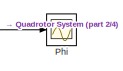
[diagram: root canvas - part 1/4, top right region]
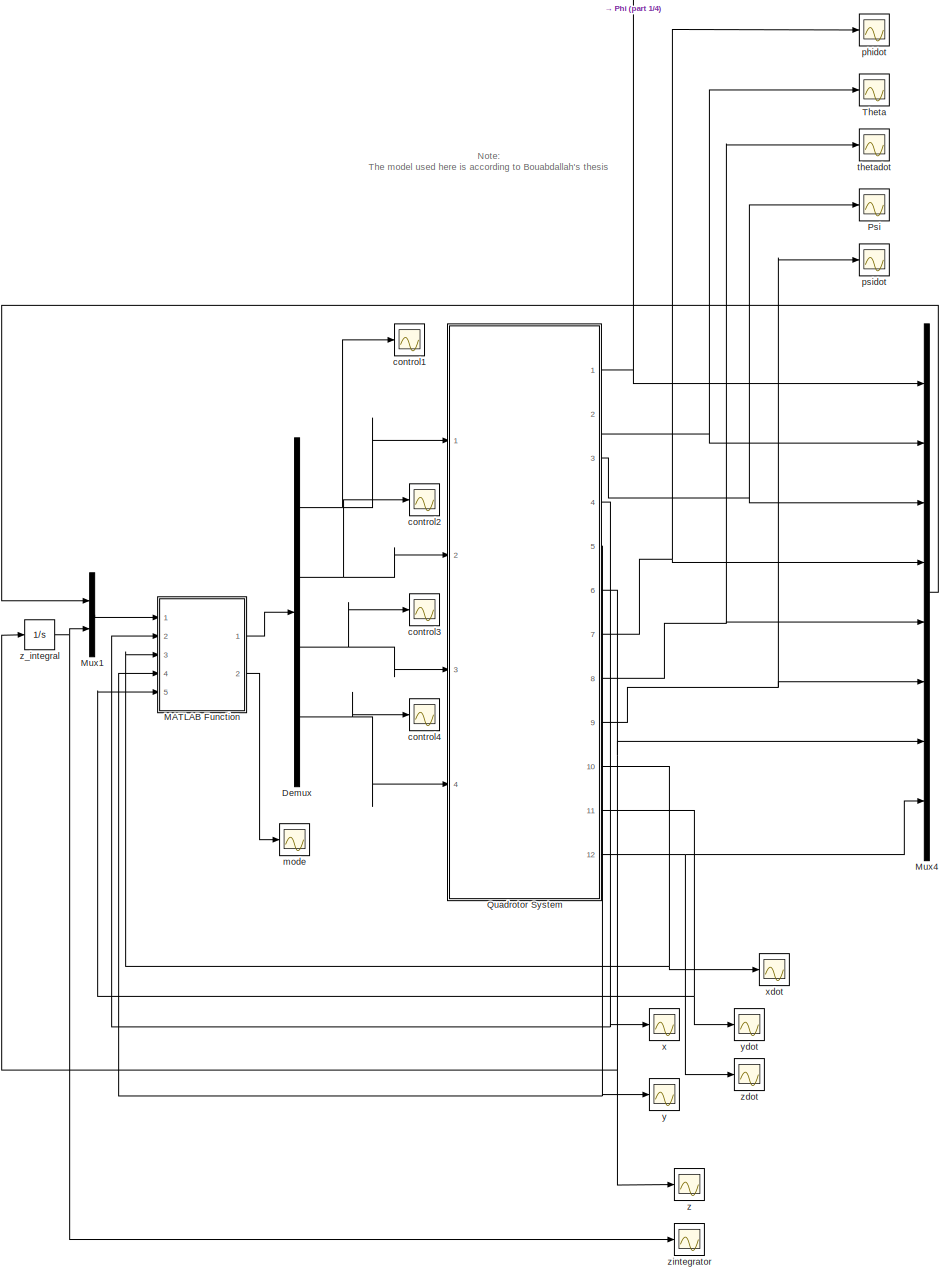
[diagram: root canvas - part 2/4, center side, full height]
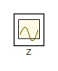
[diagram: root canvas - part 3/4, top right region]
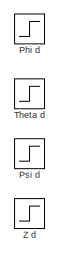
[diagram: root canvas - part 4/4, middle left region]
MODEL slx_b5c7e4dc78c3
KIND model
BLOCK [Demux] Demux
  DisplayOption = bar
  Ports = [1, 4]
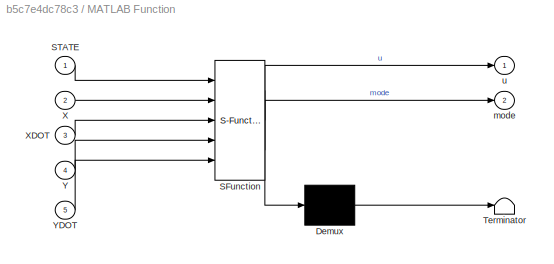
BLOCK [SubSystem] MATLAB Function
  ErrorFcn = Stateflow.Translate.translate
  FunctionWithSeparateData = off
  MaskHideContents = off
  MinAlgLoopOccurrences = off
  Opaque = off
  PermitHierarchicalResolution = ExplicitOnly
  Ports = [5, 2]
  PropExecContextOutsideSubsystem = off
  RTWSystemCode = Auto
  RequestExecContextInheritance = off
  SFBlockType = MATLAB Function
  TreatAsAtomicUnit = on
BLOCK [Demux] MATLAB Function/ Demux 
  Outputs = 1
  Ports = [1, 1]
BLOCK [S-Function] MATLAB Function/ SFunction 
  EnableBusSupport = on
  FunctionName = sf_sfun
  Parameters = K0
  PortCounts = [5 3]
  Ports = [5, 3]
  Tag = Stateflow S-Function PDQuadrotor_integrator 2
BLOCK [Terminator] MATLAB Function/ Terminator 
BLOCK [Inport] MATLAB Function/STATE
  IconDisplay = Port number
BLOCK [Inport] MATLAB Function/X
  IconDisplay = Port number
  Port = 2
BLOCK [Inport] MATLAB Function/XDOT
  IconDisplay = Port number
  Port = 3
BLOCK [Inport] MATLAB Function/Y
  IconDisplay = Port number
  Port = 4
BLOCK [Inport] MATLAB Function/YDOT
  IconDisplay = Port number
  Port = 5
BLOCK [Outport] MATLAB Function/mode
  IconDisplay = Port number
  Port = 2
BLOCK [Outport] MATLAB Function/u
  IconDisplay = Port number
BLOCK [Mux] Mux1
  DisplayOption = bar
  Inputs = 2
  Ports = [2, 1]
BLOCK [Mux] Mux4
  DisplayOption = bar
  Inputs = 8
  Ports = [8, 1]
BLOCK [Scope] Phi
  DataFormat = StructureWithTime
  Floating = off
  LimitDataPoints = off
  NumInputPorts = 1
  Ports = [1]
  SampleTime = 0
  ShowLegends = off
BLOCK [Step] Phi d
  SampleTime = 0
BLOCK [Scope] Psi
  DataFormat = StructureWithTime
  Floating = off
  LimitDataPoints = off
  NumInputPorts = 1
  Ports = [1]
  SampleTime = 0
  SaveName = ScopeData2
  ShowLegends = off
BLOCK [Step] Psi d
  SampleTime = 0
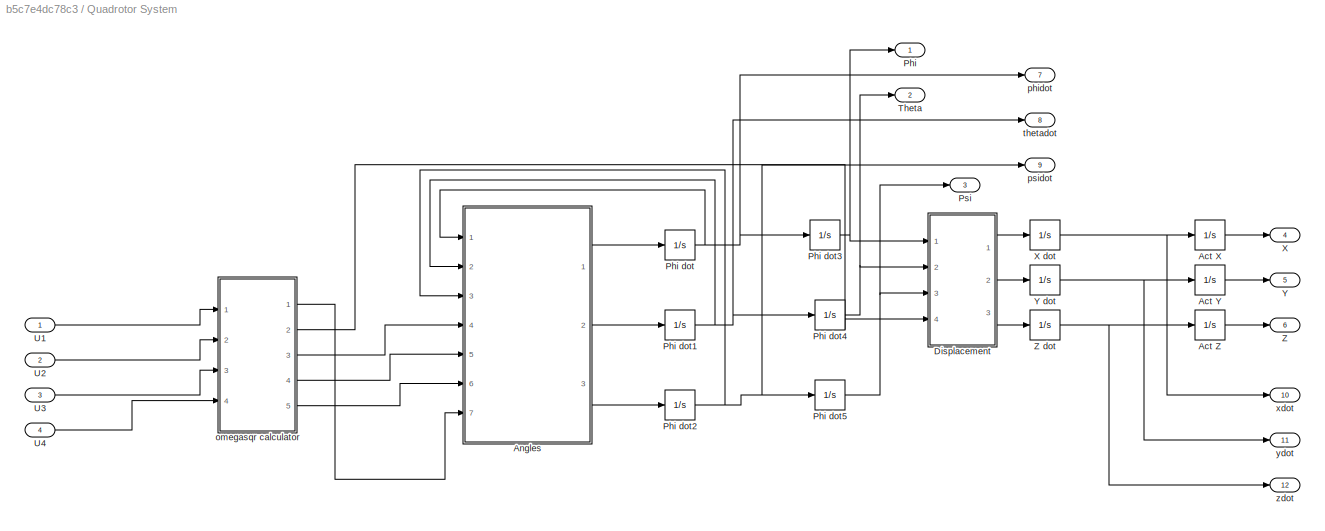
BLOCK [SubSystem] Quadrotor System
  FunctionWithSeparateData = off
  MaskHideContents = off
  MinAlgLoopOccurrences = off
  Opaque = off
  Ports = [4, 12]
  PropExecContextOutsideSubsystem = off
  RTWSystemCode = Auto
  RequestExecContextInheritance = off
BLOCK [Integrator] Quadrotor System/Act X
  Ports = [1, 1]
BLOCK [Integrator] Quadrotor System/Act Y
  Ports = [1, 1]
BLOCK [Integrator] Quadrotor System/Act Z
  Ports = [1, 1]
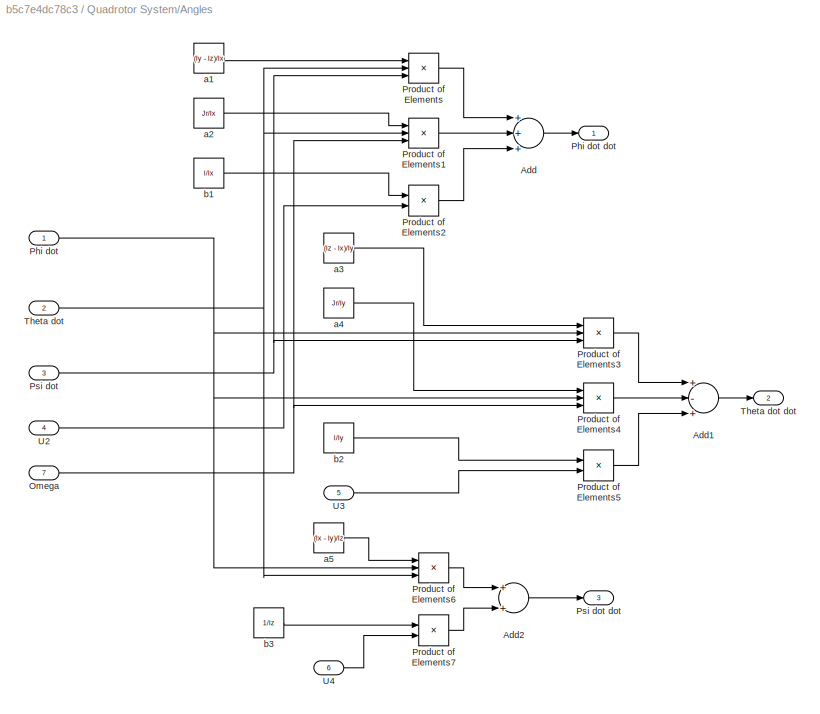
BLOCK [SubSystem] Quadrotor System/Angles
  FunctionWithSeparateData = off
  MaskHideContents = off
  MinAlgLoopOccurrences = off
  Opaque = off
  Ports = [7, 3]
  PropExecContextOutsideSubsystem = off
  RTWSystemCode = Auto
  RequestExecContextInheritance = off
BLOCK [Sum] Quadrotor System/Angles/Add
  InputSameDT = off
  Inputs = +++
  OutDataTypeStr = Inherit: Inherit via internal rule
  Ports = [3, 1]
  SaturateOnIntegerOverflow = off
BLOCK [Sum] Quadrotor System/Angles/Add1
  InputSameDT = off
  Inputs = +-+
  OutDataTypeStr = Inherit: Inherit via internal rule
  Ports = [3, 1]
  SaturateOnIntegerOverflow = off
BLOCK [Sum] Quadrotor System/Angles/Add2
  InputSameDT = off
  OutDataTypeStr = Inherit: Inherit via internal rule
  Ports = [2, 1]
  SaturateOnIntegerOverflow = off
BLOCK [Inport] Quadrotor System/Angles/Omega
  IconDisplay = Port number
  Port = 7
BLOCK [Inport] Quadrotor System/Angles/Phi dot
  IconDisplay = Port number
BLOCK [Outport] Quadrotor System/Angles/Phi dot dot
  IconDisplay = Port number
BLOCK [Product] Quadrotor System/Angles/Product of Elements
  InputSameDT = off
  Inputs = 3
  OutDataTypeStr = Inherit: Inherit via internal rule
  Ports = [3, 1]
  RndMeth = Floor
  SaturateOnIntegerOverflow = off
BLOCK [Product] Quadrotor System/Angles/Product of Elements1
  InputSameDT = off
  Inputs = 3
  OutDataTypeStr = Inherit: Inherit via internal rule
  Ports = [3, 1]
  RndMeth = Floor
  SaturateOnIntegerOverflow = off
BLOCK [Product] Quadrotor System/Angles/Product of Elements2
  InputSameDT = off
  OutDataTypeStr = Inherit: Inherit via internal rule
  Ports = [2, 1]
  RndMeth = Floor
  SaturateOnIntegerOverflow = off
BLOCK [Product] Quadrotor System/Angles/Product of Elements3
  InputSameDT = off
  Inputs = 3
  OutDataTypeStr = Inherit: Inherit via internal rule
  Ports = [3, 1]
  RndMeth = Floor
  SaturateOnIntegerOverflow = off
BLOCK [Product] Quadrotor System/Angles/Product of Elements4
  InputSameDT = off
  Inputs = 3
  OutDataTypeStr = Inherit: Inherit via internal rule
  Ports = [3, 1]
  RndMeth = Floor
  SaturateOnIntegerOverflow = off
BLOCK [Product] Quadrotor System/Angles/Product of Elements5
  InputSameDT = off
  OutDataTypeStr = Inherit: Inherit via internal rule
  Ports = [2, 1]
  RndMeth = Floor
  SaturateOnIntegerOverflow = off
BLOCK [Product] Quadrotor System/Angles/Product of Elements6
  InputSameDT = off
  Inputs = 3
  OutDataTypeStr = Inherit: Inherit via internal rule
  Ports = [3, 1]
  RndMeth = Floor
  SaturateOnIntegerOverflow = off
BLOCK [Product] Quadrotor System/Angles/Product of Elements7
  InputSameDT = off
  OutDataTypeStr = Inherit: Inherit via internal rule
  Ports = [2, 1]
  RndMeth = Floor
  SaturateOnIntegerOverflow = off
BLOCK [Inport] Quadrotor System/Angles/Psi dot
  IconDisplay = Port number
  Port = 3
BLOCK [Outport] Quadrotor System/Angles/Psi dot dot
  IconDisplay = Port number
  Port = 3
BLOCK [Inport] Quadrotor System/Angles/Theta dot
  IconDisplay = Port number
  Port = 2
BLOCK [Outport] Quadrotor System/Angles/Theta dot dot
  IconDisplay = Port number
  Port = 2
BLOCK [Inport] Quadrotor System/Angles/U2
  IconDisplay = Port number
  Port = 4
BLOCK [Inport] Quadrotor System/Angles/U3
  IconDisplay = Port number
  Port = 5
BLOCK [Inport] Quadrotor System/Angles/U4
  IconDisplay = Port number
  Port = 6
BLOCK [Constant] Quadrotor System/Angles/a1
  Value = (Iy - Iz)/Ix
BLOCK [Constant] Quadrotor System/Angles/a2
  Value = Jr/Ix
BLOCK [Constant] Quadrotor System/Angles/a3
  Value = (Iz - Ix)/Iy
BLOCK [Constant] Quadrotor System/Angles/a4
  Value = Jr/Iy
BLOCK [Constant] Quadrotor System/Angles/a5
  Value = (Ix - Iy)/Iz
BLOCK [Constant] Quadrotor System/Angles/b1
  Value = l/Ix
BLOCK [Constant] Quadrotor System/Angles/b2
  Value = l/Iy
BLOCK [Constant] Quadrotor System/Angles/b3
  Value = 1/Iz
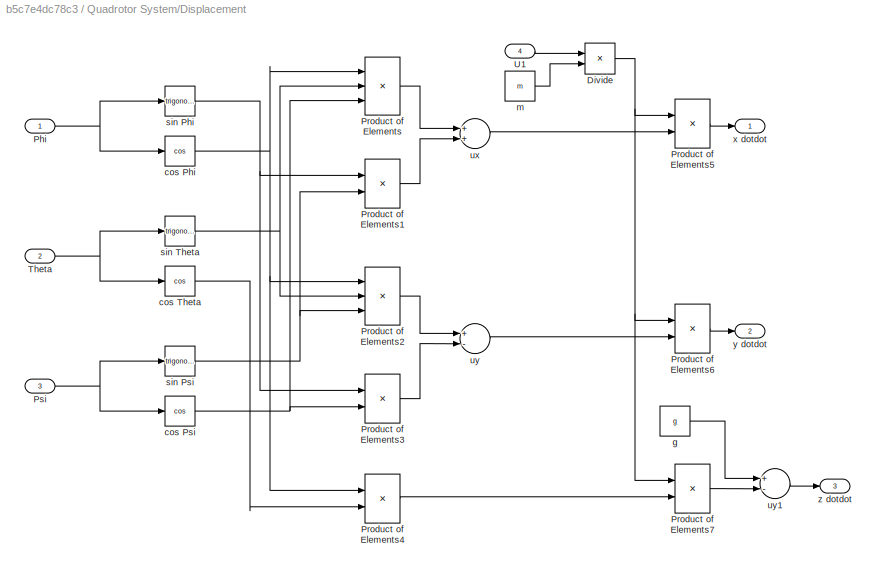
BLOCK [SubSystem] Quadrotor System/Displacement
  FunctionWithSeparateData = off
  MaskHideContents = off
  MinAlgLoopOccurrences = off
  Opaque = off
  Ports = [4, 3]
  PropExecContextOutsideSubsystem = off
  RTWSystemCode = Auto
  RequestExecContextInheritance = off
BLOCK [Product] Quadrotor System/Displacement/Divide
  InputSameDT = off
  Inputs = */
  OutDataTypeStr = Inherit: Inherit via internal rule
  Ports = [2, 1]
  RndMeth = Floor
  SaturateOnIntegerOverflow = off
BLOCK [Inport] Quadrotor System/Displacement/Phi
  IconDisplay = Port number
BLOCK [Product] Quadrotor System/Displacement/Product of Elements
  InputSameDT = off
  Inputs = 3
  OutDataTypeStr = Inherit: Inherit via internal rule
  Ports = [3, 1]
  RndMeth = Floor
  SaturateOnIntegerOverflow = off
BLOCK [Product] Quadrotor System/Displacement/Product of Elements1
  InputSameDT = off
  OutDataTypeStr = Inherit: Inherit via internal rule
  Ports = [2, 1]
  RndMeth = Floor
  SaturateOnIntegerOverflow = off
BLOCK [Product] Quadrotor System/Displacement/Product of Elements2
  InputSameDT = off
  Inputs = 3
  OutDataTypeStr = Inherit: Inherit via internal rule
  Ports = [3, 1]
  RndMeth = Floor
  SaturateOnIntegerOverflow = off
BLOCK [Product] Quadrotor System/Displacement/Product of Elements3
  InputSameDT = off
  OutDataTypeStr = Inherit: Inherit via internal rule
  Ports = [2, 1]
  RndMeth = Floor
  SaturateOnIntegerOverflow = off
BLOCK [Product] Quadrotor System/Displacement/Product of Elements4
  InputSameDT = off
  OutDataTypeStr = Inherit: Inherit via internal rule
  Ports = [2, 1]
  RndMeth = Floor
  SaturateOnIntegerOverflow = off
BLOCK [Product] Quadrotor System/Displacement/Product of Elements5
  InputSameDT = off
  OutDataTypeStr = Inherit: Inherit via internal rule
  Ports = [2, 1]
  RndMeth = Floor
  SaturateOnIntegerOverflow = off
BLOCK [Product] Quadrotor System/Displacement/Product of Elements6
  InputSameDT = off
  OutDataTypeStr = Inherit: Inherit via internal rule
  Ports = [2, 1]
  RndMeth = Floor
  SaturateOnIntegerOverflow = off
BLOCK [Product] Quadrotor System/Displacement/Product of Elements7
  InputSameDT = off
  OutDataTypeStr = Inherit: Inherit via internal rule
  Ports = [2, 1]
  RndMeth = Floor
  SaturateOnIntegerOverflow = off
BLOCK [Inport] Quadrotor System/Displacement/Psi
  IconDisplay = Port number
  Port = 3
BLOCK [Inport] Quadrotor System/Displacement/Theta
  IconDisplay = Port number
  Port = 2
BLOCK [Inport] Quadrotor System/Displacement/U1
  IconDisplay = Port number
  Port = 4
BLOCK [Trigonometry] Quadrotor System/Displacement/cos Phi
  Operator = cos
  Ports = [1, 1]
BLOCK [Trigonometry] Quadrotor System/Displacement/cos Psi
  Operator = cos
  Ports = [1, 1]
BLOCK [Trigonometry] Quadrotor System/Displacement/cos Theta
  Operator = cos
  Ports = [1, 1]
BLOCK [Constant] Quadrotor System/Displacement/g
  Value = g
BLOCK [Constant] Quadrotor System/Displacement/m
  Value = m
BLOCK [Trigonometry] Quadrotor System/Displacement/sin Phi
  Ports = [1, 1]
BLOCK [Trigonometry] Quadrotor System/Displacement/sin Psi
  Ports = [1, 1]
BLOCK [Trigonometry] Quadrotor System/Displacement/sin Theta
  Ports = [1, 1]
BLOCK [Sum] Quadrotor System/Displacement/ux
  InputSameDT = off
  OutDataTypeStr = Inherit: Inherit via internal rule
  Ports = [2, 1]
  SaturateOnIntegerOverflow = off
BLOCK [Sum] Quadrotor System/Displacement/uy
  InputSameDT = off
  Inputs = +-
  OutDataTypeStr = Inherit: Inherit via internal rule
  Ports = [2, 1]
  SaturateOnIntegerOverflow = off
BLOCK [Sum] Quadrotor System/Displacement/uy1
  InputSameDT = off
  Inputs = +-
  OutDataTypeStr = Inherit: Inherit via internal rule
  Ports = [2, 1]
  SaturateOnIntegerOverflow = off
BLOCK [Outport] Quadrotor System/Displacement/x dotdot
  IconDisplay = Port number
BLOCK [Outport] Quadrotor System/Displacement/y dotdot
  IconDisplay = Port number
  Port = 2
BLOCK [Outport] Quadrotor System/Displacement/z dotdot
  IconDisplay = Port number
  Port = 3
BLOCK [Outport] Quadrotor System/Phi
  IconDisplay = Port number
BLOCK [Integrator] Quadrotor System/Phi dot
  Ports = [1, 1]
BLOCK [Integrator] Quadrotor System/Phi dot1
  InitialCondition = 0.0
  Ports = [1, 1]
  ZeroCross = off
BLOCK [Integrator] Quadrotor System/Phi dot2
  Ports = [1, 1]
  ZeroCross = off
BLOCK [Integrator] Quadrotor System/Phi dot3
  InitialCondition = 0.1
  Ports = [1, 1]
  ZeroCross = off
BLOCK [Integrator] Quadrotor System/Phi dot4
  Ports = [1, 1]
  ZeroCross = off
BLOCK [Integrator] Quadrotor System/Phi dot5
  InitialCondition = 0.1
  Ports = [1, 1]
  ZeroCross = off
BLOCK [Outport] Quadrotor System/Psi
  IconDisplay = Port number
  Port = 3
BLOCK [Outport] Quadrotor System/Theta
  IconDisplay = Port number
  Port = 2
BLOCK [Inport] Quadrotor System/U1
  IconDisplay = Port number
BLOCK [Inport] Quadrotor System/U2
  IconDisplay = Port number
  Port = 2
BLOCK [Inport] Quadrotor System/U3
  IconDisplay = Port number
  Port = 3
BLOCK [Inport] Quadrotor System/U4
  IconDisplay = Port number
  Port = 4
BLOCK [Outport] Quadrotor System/X
  IconDisplay = Port number
  Port = 4
BLOCK [Integrator] Quadrotor System/X dot
  Ports = [1, 1]
BLOCK [Outport] Quadrotor System/Y
  IconDisplay = Port number
  Port = 5
BLOCK [Integrator] Quadrotor System/Y dot
  Ports = [1, 1]
BLOCK [Outport] Quadrotor System/Z
  IconDisplay = Port number
  Port = 6
BLOCK [Integrator] Quadrotor System/Z dot
  Ports = [1, 1]
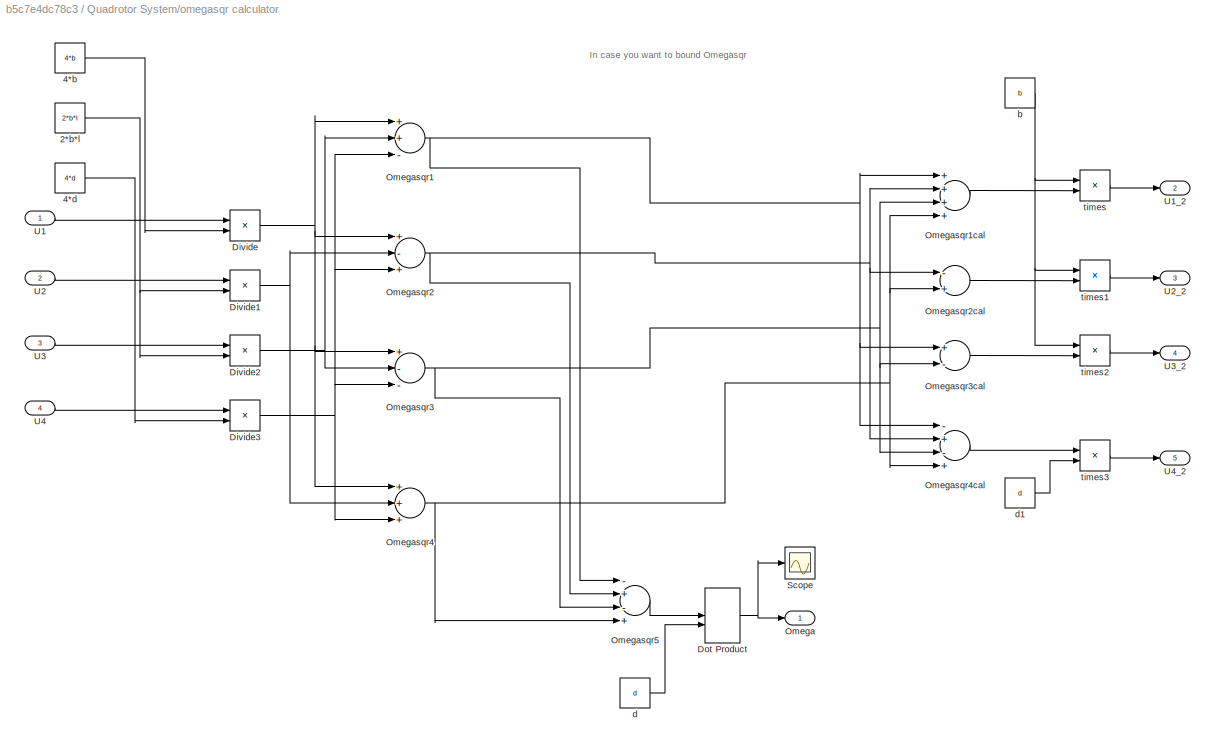
BLOCK [SubSystem] Quadrotor System/omegasqr calculator
  FunctionWithSeparateData = off
  MaskHideContents = off
  MinAlgLoopOccurrences = off
  Opaque = off
  Ports = [4, 5]
  PropExecContextOutsideSubsystem = off
  RTWSystemCode = Auto
  RequestExecContextInheritance = off
BLOCK [Constant] Quadrotor System/omegasqr calculator/2*b*l
  Value = 2*b*l
BLOCK [Constant] Quadrotor System/omegasqr calculator/4*b
  Value = 4*b
BLOCK [Constant] Quadrotor System/omegasqr calculator/4*d
  Value = 4*d
BLOCK [Product] Quadrotor System/omegasqr calculator/Divide
  InputSameDT = off
  Inputs = */
  OutDataTypeStr = Inherit: Inherit via internal rule
  Ports = [2, 1]
  RndMeth = Floor
  SaturateOnIntegerOverflow = off
BLOCK [Product] Quadrotor System/omegasqr calculator/Divide1
  InputSameDT = off
  Inputs = */
  OutDataTypeStr = Inherit: Inherit via internal rule
  Ports = [2, 1]
  RndMeth = Floor
  SaturateOnIntegerOverflow = off
BLOCK [Product] Quadrotor System/omegasqr calculator/Divide2
  InputSameDT = off
  Inputs = */
  OutDataTypeStr = Inherit: Inherit via internal rule
  Ports = [2, 1]
  RndMeth = Floor
  SaturateOnIntegerOverflow = off
BLOCK [Product] Quadrotor System/omegasqr calculator/Divide3
  InputSameDT = off
  Inputs = */
  OutDataTypeStr = Inherit: Inherit via internal rule
  Ports = [2, 1]
  RndMeth = Floor
  SaturateOnIntegerOverflow = off
BLOCK [DotProduct] Quadrotor System/omegasqr calculator/Dot Product
  OutDataTypeStr = Inherit: Inherit via internal rule
BLOCK [Outport] Quadrotor System/omegasqr calculator/Omega
  IconDisplay = Port number
BLOCK [Sum] Quadrotor System/omegasqr calculator/Omegasqr1
  InputSameDT = off
  Inputs = ++-
  OutDataTypeStr = Inherit: Inherit via internal rule
  Ports = [3, 1]
  SaturateOnIntegerOverflow = off
BLOCK [Sum] Quadrotor System/omegasqr calculator/Omegasqr1cal
  InputSameDT = off
  Inputs = ++++
  OutDataTypeStr = Inherit: Inherit via internal rule
  Ports = [4, 1]
  SaturateOnIntegerOverflow = off
BLOCK [Sum] Quadrotor System/omegasqr calculator/Omegasqr2
  InputSameDT = off
  Inputs = +-+
  OutDataTypeStr = Inherit: Inherit via internal rule
  Ports = [3, 1]
  SaturateOnIntegerOverflow = off
BLOCK [Sum] Quadrotor System/omegasqr calculator/Omegasqr2cal
  InputSameDT = off
  Inputs = -+
  OutDataTypeStr = Inherit: Inherit via internal rule
  Ports = [2, 1]
  SaturateOnIntegerOverflow = off
BLOCK [Sum] Quadrotor System/omegasqr calculator/Omegasqr3
  InputSameDT = off
  Inputs = +--
  OutDataTypeStr = Inherit: Inherit via internal rule
  Ports = [3, 1]
  SaturateOnIntegerOverflow = off
BLOCK [Sum] Quadrotor System/omegasqr calculator/Omegasqr3cal
  InputSameDT = off
  Inputs = +-
  OutDataTypeStr = Inherit: Inherit via internal rule
  Ports = [2, 1]
  SaturateOnIntegerOverflow = off
BLOCK [Sum] Quadrotor System/omegasqr calculator/Omegasqr4
  InputSameDT = off
  Inputs = +++
  OutDataTypeStr = Inherit: Inherit via internal rule
  Ports = [3, 1]
  SaturateOnIntegerOverflow = off
BLOCK [Sum] Quadrotor System/omegasqr calculator/Omegasqr4cal
  InputSameDT = off
  Inputs = -+-+
  OutDataTypeStr = Inherit: Inherit via internal rule
  Ports = [4, 1]
  SaturateOnIntegerOverflow = off
BLOCK [Sum] Quadrotor System/omegasqr calculator/Omegasqr5
  InputSameDT = off
  Inputs = -+-+
  OutDataTypeStr = Inherit: Inherit via internal rule
  Ports = [4, 1]
  SaturateOnIntegerOverflow = off
BLOCK [Scope] Quadrotor System/omegasqr calculator/Scope
  DataFormat = StructureWithTime
  Floating = off
  NumInputPorts = 1
  Ports = [1]
  SampleTime = 0
  SaveName = ScopeData6
  ShowLegends = off
BLOCK [Inport] Quadrotor System/omegasqr calculator/U1
  IconDisplay = Port number
BLOCK [Outport] Quadrotor System/omegasqr calculator/U1_2
  IconDisplay = Port number
  Port = 2
BLOCK [Inport] Quadrotor System/omegasqr calculator/U2
  IconDisplay = Port number
  Port = 2
BLOCK [Outport] Quadrotor System/omegasqr calculator/U2_2
  IconDisplay = Port number
  Port = 3
BLOCK [Inport] Quadrotor System/omegasqr calculator/U3
  IconDisplay = Port number
  Port = 3
BLOCK [Outport] Quadrotor System/omegasqr calculator/U3_2
  IconDisplay = Port number
  Port = 4
BLOCK [Inport] Quadrotor System/omegasqr calculator/U4
  IconDisplay = Port number
  Port = 4
BLOCK [Outport] Quadrotor System/omegasqr calculator/U4_2
  IconDisplay = Port number
  Port = 5
BLOCK [Constant] Quadrotor System/omegasqr calculator/b
  Value = b
BLOCK [Constant] Quadrotor System/omegasqr calculator/d
  Value = d
BLOCK [Constant] Quadrotor System/omegasqr calculator/d1
  Value = d
BLOCK [Product] Quadrotor System/omegasqr calculator/times
  InputSameDT = off
  Inputs = **
  OutDataTypeStr = Inherit: Inherit via internal rule
  Ports = [2, 1]
  RndMeth = Floor
  SaturateOnIntegerOverflow = off
BLOCK [Product] Quadrotor System/omegasqr calculator/times1
  InputSameDT = off
  Inputs = **
  OutDataTypeStr = Inherit: Inherit via internal rule
  Ports = [2, 1]
  RndMeth = Floor
  SaturateOnIntegerOverflow = off
BLOCK [Product] Quadrotor System/omegasqr calculator/times2
  InputSameDT = off
  Inputs = **
  OutDataTypeStr = Inherit: Inherit via internal rule
  Ports = [2, 1]
  RndMeth = Floor
  SaturateOnIntegerOverflow = off
BLOCK [Product] Quadrotor System/omegasqr calculator/times3
  InputSameDT = off
  Inputs = **
  OutDataTypeStr = Inherit: Inherit via internal rule
  Ports = [2, 1]
  RndMeth = Floor
  SaturateOnIntegerOverflow = off
BLOCK [Outport] Quadrotor System/phidot
  IconDisplay = Port number
  Port = 7
BLOCK [Outport] Quadrotor System/psidot
  IconDisplay = Port number
  Port = 9
BLOCK [Outport] Quadrotor System/thetadot
  IconDisplay = Port number
  Port = 8
BLOCK [Outport] Quadrotor System/xdot
  IconDisplay = Port number
  Port = 10
BLOCK [Outport] Quadrotor System/ydot
  IconDisplay = Port number
  Port = 11
BLOCK [Outport] Quadrotor System/zdot
  IconDisplay = Port number
  Port = 12
BLOCK [Scope] Theta
  DataFormat = StructureWithTime
  Floating = off
  LimitDataPoints = off
  NumInputPorts = 1
  Ports = [1]
  SampleTime = 0
  SaveName = ScopeData1
  ShowLegends = off
BLOCK [Step] Theta d
  SampleTime = 0
BLOCK [Scope] Z
  DataFormat = StructureWithTime
  Floating = off
  LimitDataPoints = off
  NumInputPorts = 1
  Ports = [1]
  SampleTime = 0
  SaveName = ScopeData4
  ShowLegends = off
BLOCK [Step] Z d
  SampleTime = 0
BLOCK [Scope] control1 
  DataFormat = StructureWithTime
  Floating = off
  LimitDataPoints = off
  NumInputPorts = 1
  Ports = [1]
  SampleTime = 0
  SaveName = ScopeData14
  ShowLegends = off
  ZoomMode = xonly
BLOCK [Scope] control2
  DataFormat = StructureWithTime
  Floating = off
  LimitDataPoints = off
  NumInputPorts = 1
  Ports = [1]
  SampleTime = 0
  SaveName = ScopeData15
  ShowLegends = off
BLOCK [Scope] control3
  DataFormat = StructureWithTime
  Floating = off
  LimitDataPoints = off
  NumInputPorts = 1
  Ports = [1]
  SampleTime = 0
  SaveName = ScopeData16
  ShowLegends = off
BLOCK [Scope] control4
  DataFormat = StructureWithTime
  Floating = off
  LimitDataPoints = off
  NumInputPorts = 1
  Ports = [1]
  SampleTime = 0
  SaveName = ScopeData17
  ShowLegends = off
BLOCK [Scope] mode
  DataFormat = StructureWithTime
  Floating = off
  LimitDataPoints = off
  NumInputPorts = 1
  Ports = [1]
  SampleTime = 0
  SaveName = ScopeData19
  ShowLegends = off
BLOCK [Scope] phidot
  DataFormat = StructureWithTime
  Floating = off
  LimitDataPoints = off
  NumInputPorts = 1
  Ports = [1]
  SampleTime = 0
  SaveName = ScopeData7
  ShowLegends = off
BLOCK [Scope] psidot
  DataFormat = StructureWithTime
  Floating = off
  LimitDataPoints = off
  NumInputPorts = 1
  Ports = [1]
  SampleTime = 0
  SaveName = ScopeData13
  ShowLegends = off
BLOCK [Scope] thetadot
  DataFormat = StructureWithTime
  Floating = off
  LimitDataPoints = off
  NumInputPorts = 1
  Ports = [1]
  SampleTime = 0
  SaveName = ScopeData12
  ShowLegends = off
BLOCK [Scope] x
  DataFormat = StructureWithTime
  Floating = off
  LimitDataPoints = off
  NumInputPorts = 1
  Ports = [1]
  SampleTime = 0
  SaveName = ScopeData5
  ShowLegends = off
  TimeRange = 100
  YMax = 0.0003
  YMin = 0
  ZoomMode = yonly
BLOCK [Scope] xdot
  DataFormat = StructureWithTime
  Floating = off
  LimitDataPoints = off
  NumInputPorts = 1
  Ports = [1]
  SampleTime = 0
  SaveName = ScopeData9
  ShowLegends = off
BLOCK [Scope] y
  DataFormat = StructureWithTime
  Floating = off
  LimitDataPoints = off
  NumInputPorts = 1
  Ports = [1]
  SampleTime = 0
  SaveName = ScopeData3
  ShowLegends = off
  TimeRange = 100
  YMax = 670000
  YMin = 530000
  ZoomMode = yonly
BLOCK [Scope] ydot
  DataFormat = StructureWithTime
  Floating = off
  LimitDataPoints = off
  NumInputPorts = 1
  Ports = [1]
  SampleTime = 0
  SaveName = ScopeData10
  ShowLegends = off
BLOCK [Scope] z
  DataFormat = StructureWithTime
  Floating = off
  LimitDataPoints = off
  NumInputPorts = 1
  Ports = [1]
  SampleTime = 0
  SaveName = ScopeData8
  ShowLegends = off
BLOCK [Integrator] z_integral
  Ports = [1, 1]
  ZeroCross = off
BLOCK [Scope] zdot
  DataFormat = StructureWithTime
  Floating = off
  NumInputPorts = 1
  Ports = [1]
  SampleTime = 0
  SaveName = ScopeData11
  ShowLegends = off
BLOCK [Scope] zintegrator
  DataFormat = StructureWithTime
  Floating = off
  LimitDataPoints = off
  NumInputPorts = 1
  Ports = [1]
  SampleTime = 0
  SaveName = ScopeData18
  ShowLegends = off
ANNOTATION (root): Note: The model used here is according to Bouabdallah's thesis
ANNOTATION Quadrotor System/omegasqr calculator: In case you want to bound Omegasqr
NET Demux:1 -> Quadrotor System:1, control1 :1
NET Demux:2 -> Quadrotor System:2, control2:1
NET Demux:3 -> Quadrotor System:3, control3:1
NET Demux:4 -> Quadrotor System:4, control4:1
LINE MATLAB Function:1 -> Demux:1
LINE MATLAB Function:2 -> mode:1
LINE Mux1:1 -> MATLAB Function:1
LINE Mux4:1 -> Mux1:1
LINE Quadrotor System/Act X:1 -> Quadrotor System/X:1
LINE Quadrotor System/Act Y:1 -> Quadrotor System/Y:1
LINE Quadrotor System/Act Z:1 -> Quadrotor System/Z:1
LINE Quadrotor System/Angles/Add1:1 -> Quadrotor System/Angles/Theta dot dot:1
LINE Quadrotor System/Angles/Add2:1 -> Quadrotor System/Angles/Psi dot dot:1
LINE Quadrotor System/Angles/Add:1 -> Quadrotor System/Angles/Phi dot dot:1
NET Quadrotor System/Angles/Omega:1 -> Quadrotor System/Angles/Product of Elements1:3, Quadrotor System/Angles/Product of Elements4:3
NET Quadrotor System/Angles/Phi dot:1 -> Quadrotor System/Angles/Product of Elements3:2, Quadrotor System/Angles/Product of Elements4:2, Quadrotor System/Angles/Product of Elements6:2
LINE Quadrotor System/Angles/Product of Elements1:1 -> Quadrotor System/Angles/Add:2
LINE Quadrotor System/Angles/Product of Elements2:1 -> Quadrotor System/Angles/Add:3
LINE Quadrotor System/Angles/Product of Elements3:1 -> Quadrotor System/Angles/Add1:1
LINE Quadrotor System/Angles/Product of Elements4:1 -> Quadrotor System/Angles/Add1:2
LINE Quadrotor System/Angles/Product of Elements5:1 -> Quadrotor System/Angles/Add1:3
LINE Quadrotor System/Angles/Product of Elements6:1 -> Quadrotor System/Angles/Add2:1
LINE Quadrotor System/Angles/Product of Elements7:1 -> Quadrotor System/Angles/Add2:2
LINE Quadrotor System/Angles/Product of Elements:1 -> Quadrotor System/Angles/Add:1
NET Quadrotor System/Angles/Psi dot:1 -> Quadrotor System/Angles/Product of Elements3:3, Quadrotor System/Angles/Product of Elements:3
NET Quadrotor System/Angles/Theta dot:1 -> Quadrotor System/Angles/Product of Elements1:2, Quadrotor System/Angles/Product of Elements6:3, Quadrotor System/Angles/Product of Elements:2
LINE Quadrotor System/Angles/U2:1 -> Quadrotor System/Angles/Product of Elements2:2
LINE Quadrotor System/Angles/U3:1 -> Quadrotor System/Angles/Product of Elements5:2
LINE Quadrotor System/Angles/U4:1 -> Quadrotor System/Angles/Product of Elements7:2
LINE Quadrotor System/Angles/a1:1 -> Quadrotor System/Angles/Product of Elements:1
LINE Quadrotor System/Angles/a2:1 -> Quadrotor System/Angles/Product of Elements1:1
LINE Quadrotor System/Angles/a3:1 -> Quadrotor System/Angles/Product of Elements3:1
LINE Quadrotor System/Angles/a4:1 -> Quadrotor System/Angles/Product of Elements4:1
LINE Quadrotor System/Angles/a5:1 -> Quadrotor System/Angles/Product of Elements6:1
LINE Quadrotor System/Angles/b1:1 -> Quadrotor System/Angles/Product of Elements2:1
LINE Quadrotor System/Angles/b2:1 -> Quadrotor System/Angles/Product of Elements5:1
LINE Quadrotor System/Angles/b3:1 -> Quadrotor System/Angles/Product of Elements7:1
LINE Quadrotor System/Angles:1 -> Quadrotor System/Phi dot:1
LINE Quadrotor System/Angles:2 -> Quadrotor System/Phi dot1:1
LINE Quadrotor System/Angles:3 -> Quadrotor System/Phi dot2:1
NET Quadrotor System/Displacement/Divide:1 -> Quadrotor System/Displacement/Product of Elements5:1, Quadrotor System/Displacement/Product of Elements6:1, Quadrotor System/Displacement/Product of Elements7:1
NET Quadrotor System/Displacement/Phi:1 -> Quadrotor System/Displacement/cos Phi:1, Quadrotor System/Displacement/sin Phi:1
LINE Quadrotor System/Displacement/Product of Elements1:1 -> Quadrotor System/Displacement/ux:2
LINE Quadrotor System/Displacement/Product of Elements2:1 -> Quadrotor System/Displacement/uy:1
LINE Quadrotor System/Displacement/Product of Elements3:1 -> Quadrotor System/Displacement/uy:2
LINE Quadrotor System/Displacement/Product of Elements4:1 -> Quadrotor System/Displacement/Product of Elements7:2
LINE Quadrotor System/Displacement/Product of Elements5:1 -> Quadrotor System/Displacement/x dotdot:1
LINE Quadrotor System/Displacement/Product of Elements6:1 -> Quadrotor System/Displacement/y dotdot:1
LINE Quadrotor System/Displacement/Product of Elements7:1 -> Quadrotor System/Displacement/uy1:2
LINE Quadrotor System/Displacement/Product of Elements:1 -> Quadrotor System/Displacement/ux:1
NET Quadrotor System/Displacement/Psi:1 -> Quadrotor System/Displacement/cos Psi:1, Quadrotor System/Displacement/sin Psi:1
NET Quadrotor System/Displacement/Theta:1 -> Quadrotor System/Displacement/cos Theta:1, Quadrotor System/Displacement/sin Theta:1
LINE Quadrotor System/Displacement/U1:1 -> Quadrotor System/Displacement/Divide:1
NET Quadrotor System/Displacement/cos Phi:1 -> Quadrotor System/Displacement/Product of Elements2:1, Quadrotor System/Displacement/Product of Elements4:1, Quadrotor System/Displacement/Product of Elements:1
NET Quadrotor System/Displacement/cos Psi:1 -> Quadrotor System/Displacement/Product of Elements3:2, Quadrotor System/Displacement/Product of Elements:3
LINE Quadrotor System/Displacement/cos Theta:1 -> Quadrotor System/Displacement/Product of Elements4:2
LINE Quadrotor System/Displacement/g:1 -> Quadrotor System/Displacement/uy1:1
LINE Quadrotor System/Displacement/m:1 -> Quadrotor System/Displacement/Divide:2
NET Quadrotor System/Displacement/sin Phi:1 -> Quadrotor System/Displacement/Product of Elements1:1, Quadrotor System/Displacement/Product of Elements3:1
NET Quadrotor System/Displacement/sin Psi:1 -> Quadrotor System/Displacement/Product of Elements1:2, Quadrotor System/Displacement/Product of Elements2:3
NET Quadrotor System/Displacement/sin Theta:1 -> Quadrotor System/Displacement/Product of Elements2:2, Quadrotor System/Displacement/Product of Elements:2
LINE Quadrotor System/Displacement/ux:1 -> Quadrotor System/Displacement/Product of Elements5:2
LINE Quadrotor System/Displacement/uy1:1 -> Quadrotor System/Displacement/z dotdot:1
LINE Quadrotor System/Displacement/uy:1 -> Quadrotor System/Displacement/Product of Elements6:2
LINE Quadrotor System/Displacement:1 -> Quadrotor System/X dot:1
LINE Quadrotor System/Displacement:2 -> Quadrotor System/Y dot:1
LINE Quadrotor System/Displacement:3 -> Quadrotor System/Z dot:1
NET Quadrotor System/Phi dot1:1 -> Quadrotor System/Angles:2, Quadrotor System/Phi dot4:1, Quadrotor System/thetadot:1
NET Quadrotor System/Phi dot2:1 -> Quadrotor System/Angles:3, Quadrotor System/Phi dot5:1, Quadrotor System/psidot:1
NET Quadrotor System/Phi dot3:1 -> Quadrotor System/Displacement:1, Quadrotor System/Phi:1
NET Quadrotor System/Phi dot4:1 -> Quadrotor System/Displacement:2, Quadrotor System/Theta:1
NET Quadrotor System/Phi dot5:1 -> Quadrotor System/Displacement:3, Quadrotor System/Psi:1
NET Quadrotor System/Phi dot:1 -> Quadrotor System/Angles:1, Quadrotor System/Phi dot3:1, Quadrotor System/phidot:1
LINE Quadrotor System/U1:1 -> Quadrotor System/omegasqr calculator:1
LINE Quadrotor System/U2:1 -> Quadrotor System/omegasqr calculator:2
LINE Quadrotor System/U3:1 -> Quadrotor System/omegasqr calculator:3
LINE Quadrotor System/U4:1 -> Quadrotor System/omegasqr calculator:4
NET Quadrotor System/X dot:1 -> Quadrotor System/Act X:1, Quadrotor System/xdot:1
NET Quadrotor System/Y dot:1 -> Quadrotor System/Act Y:1, Quadrotor System/ydot:1
NET Quadrotor System/Z dot:1 -> Quadrotor System/Act Z:1, Quadrotor System/zdot:1
NET Quadrotor System/omegasqr calculator/2*b*l:1 -> Quadrotor System/omegasqr calculator/Divide1:2, Quadrotor System/omegasqr calculator/Divide2:2
LINE Quadrotor System/omegasqr calculator/4*b:1 -> Quadrotor System/omegasqr calculator/Divide:2
LINE Quadrotor System/omegasqr calculator/4*d:1 -> Quadrotor System/omegasqr calculator/Divide3:2
NET Quadrotor System/omegasqr calculator/Divide1:1 -> Quadrotor System/omegasqr calculator/Omegasqr2:2, Quadrotor System/omegasqr calculator/Omegasqr4:2
NET Quadrotor System/omegasqr calculator/Divide2:1 -> Quadrotor System/omegasqr calculator/Omegasqr1:2, Quadrotor System/omegasqr calculator/Omegasqr3:2
NET Quadrotor System/omegasqr calculator/Divide3:1 -> Quadrotor System/omegasqr calculator/Omegasqr1:3, Quadrotor System/omegasqr calculator/Omegasqr2:3, Quadrotor System/omegasqr calculator/Omegasqr3:3, Quadrotor System/omegasqr calculator/Omegasqr4:3
NET Quadrotor System/omegasqr calculator/Divide:1 -> Quadrotor System/omegasqr calculator/Omegasqr1:1, Quadrotor System/omegasqr calculator/Omegasqr2:1, Quadrotor System/omegasqr calculator/Omegasqr3:1, Quadrotor System/omegasqr calculator/Omegasqr4:1
NET Quadrotor System/omegasqr calculator/Dot Product:1 -> Quadrotor System/omegasqr calculator/Omega:1, Quadrotor System/omegasqr calculator/Scope:1
NET Quadrotor System/omegasqr calculator/Omegasqr1:1 -> Quadrotor System/omegasqr calculator/Omegasqr1cal:1, Quadrotor System/omegasqr calculator/Omegasqr3cal:1, Quadrotor System/omegasqr calculator/Omegasqr4cal:1, Quadrotor System/omegasqr calculator/Omegasqr5:1
LINE Quadrotor System/omegasqr calculator/Omegasqr1cal:1 -> Quadrotor System/omegasqr calculator/times:2
NET Quadrotor System/omegasqr calculator/Omegasqr2:1 -> Quadrotor System/omegasqr calculator/Omegasqr1cal:2, Quadrotor System/omegasqr calculator/Omegasqr2cal:1, Quadrotor System/omegasqr calculator/Omegasqr4cal:2, Quadrotor System/omegasqr calculator/Omegasqr5:2
LINE Quadrotor System/omegasqr calculator/Omegasqr2cal:1 -> Quadrotor System/omegasqr calculator/times1:2
NET Quadrotor System/omegasqr calculator/Omegasqr3:1 -> Quadrotor System/omegasqr calculator/Omegasqr1cal:3, Quadrotor System/omegasqr calculator/Omegasqr3cal:2, Quadrotor System/omegasqr calculator/Omegasqr4cal:3, Quadrotor System/omegasqr calculator/Omegasqr5:3
LINE Quadrotor System/omegasqr calculator/Omegasqr3cal:1 -> Quadrotor System/omegasqr calculator/times2:2
NET Quadrotor System/omegasqr calculator/Omegasqr4:1 -> Quadrotor System/omegasqr calculator/Omegasqr1cal:4, Quadrotor System/omegasqr calculator/Omegasqr2cal:2, Quadrotor System/omegasqr calculator/Omegasqr4cal:4, Quadrotor System/omegasqr calculator/Omegasqr5:4
LINE Quadrotor System/omegasqr calculator/Omegasqr4cal:1 -> Quadrotor System/omegasqr calculator/times3:1
LINE Quadrotor System/omegasqr calculator/Omegasqr5:1 -> Quadrotor System/omegasqr calculator/Dot Product:1
LINE Quadrotor System/omegasqr calculator/U1:1 -> Quadrotor System/omegasqr calculator/Divide:1
LINE Quadrotor System/omegasqr calculator/U2:1 -> Quadrotor System/omegasqr calculator/Divide1:1
LINE Quadrotor System/omegasqr calculator/U3:1 -> Quadrotor System/omegasqr calculator/Divide2:1
LINE Quadrotor System/omegasqr calculator/U4:1 -> Quadrotor System/omegasqr calculator/Divide3:1
NET Quadrotor System/omegasqr calculator/b:1 -> Quadrotor System/omegasqr calculator/times1:1, Quadrotor System/omegasqr calculator/times2:1, Quadrotor System/omegasqr calculator/times:1
LINE Quadrotor System/omegasqr calculator/d1:1 -> Quadrotor System/omegasqr calculator/times3:2
LINE Quadrotor System/omegasqr calculator/d:1 -> Quadrotor System/omegasqr calculator/Dot Product:2
LINE Quadrotor System/omegasqr calculator/times1:1 -> Quadrotor System/omegasqr calculator/U2_2:1
LINE Quadrotor System/omegasqr calculator/times2:1 -> Quadrotor System/omegasqr calculator/U3_2:1
LINE Quadrotor System/omegasqr calculator/times3:1 -> Quadrotor System/omegasqr calculator/U4_2:1
LINE Quadrotor System/omegasqr calculator/times:1 -> Quadrotor System/omegasqr calculator/U1_2:1
LINE Quadrotor System/omegasqr calculator:1 -> Quadrotor System/Angles:7
LINE Quadrotor System/omegasqr calculator:2 -> Quadrotor System/Displacement:4
LINE Quadrotor System/omegasqr calculator:3 -> Quadrotor System/Angles:4
LINE Quadrotor System/omegasqr calculator:4 -> Quadrotor System/Angles:5
LINE Quadrotor System/omegasqr calculator:5 -> Quadrotor System/Angles:6
NET Quadrotor System:1 -> Mux4:1, Phi:1
NET Quadrotor System:10 -> MATLAB Function:3, xdot:1
NET Quadrotor System:11 -> MATLAB Function:5, ydot:1
NET Quadrotor System:12 -> Mux4:8, zdot:1
NET Quadrotor System:2 -> Mux4:2, Theta:1
NET Quadrotor System:3 -> Mux4:3, Psi:1
NET Quadrotor System:4 -> MATLAB Function:2, x:1
NET Quadrotor System:5 -> MATLAB Function:4, y:1
NET Quadrotor System:6 -> Mux4:7, z:1, z_integral:1
NET Quadrotor System:7 -> Mux4:4, phidot:1
NET Quadrotor System:8 -> Mux4:5, thetadot:1
NET Quadrotor System:9 -> Mux4:6, psidot:1
NET z_integral:1 -> Mux1:2, zintegrator:1
note: NET lines group one-source signal fan-out (src -> all destinations, sorted); 1:1 wires keep LINE
